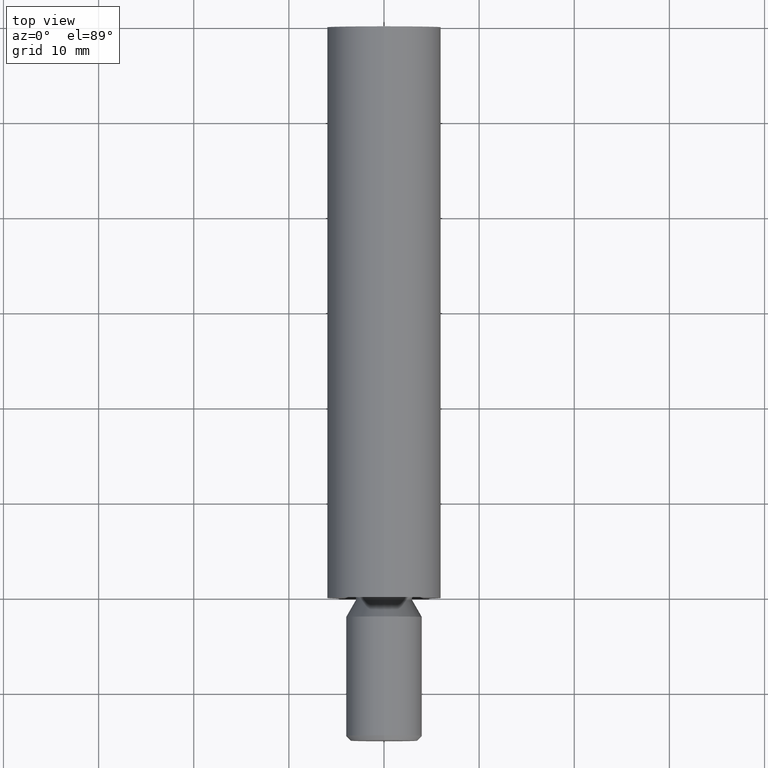
[diagram: clean part render]
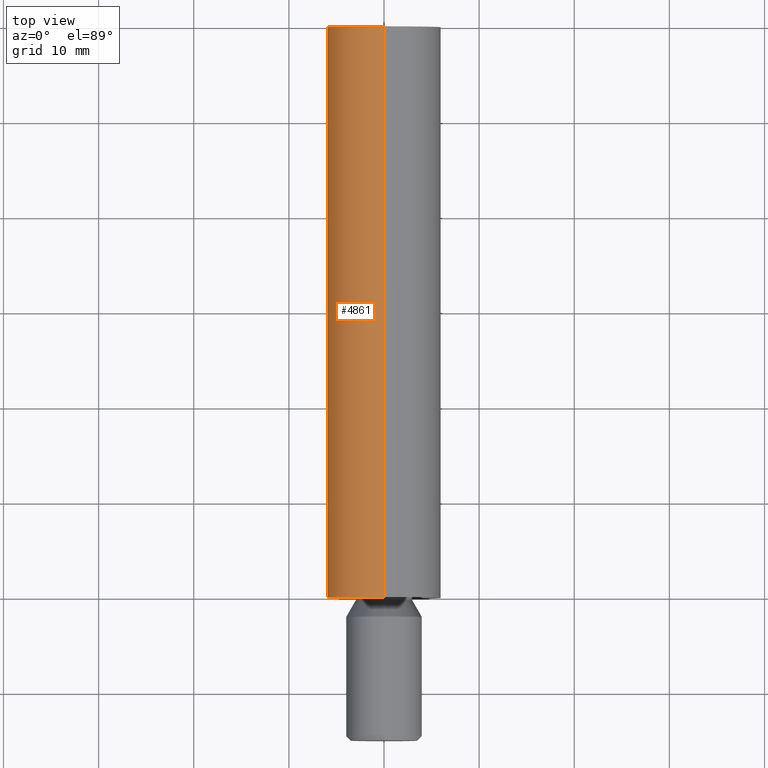
[diagram: same view with one face highlighted and labeled with its STEP entity id]
A machine part, top view. The second image highlights one B-rep face of the part: STEP entity #4861.
In plain terms, the highlighted cylindrical surface (partial cylindrical patch) has radius 6 mm, axis along (-0, -1, -0).
Its self-contained STEP definition (entity closure, byte-faithful):
#154 = DIRECTION ( 'NONE',  ( -0.0000000000000000000, -1.000000000000000000, -0.0000000000000000000 ) ) ;
#211 = VERTEX_POINT ( 'NONE', #8706 ) ;
#261 = AXIS2_PLACEMENT_3D ( 'NONE', #302, #7228, #1458 ) ;
#302 = CARTESIAN_POINT ( 'NONE',  ( 0.0000000000000000000, 0.0000000000000000000, 0.0000000000000000000 ) ) ;
#569 = EDGE_LOOP ( 'NONE', ( #14771, #8972, #6812, #4640 ) ) ;
#1141 = VECTOR ( 'NONE', #154, 1000.000000000000000 ) ;
#1458 = DIRECTION ( 'NONE',  ( 0.0000000000000000000, 0.0000000000000000000, -1.000000000000000000 ) ) ;
#1470 = VERTEX_POINT ( 'NONE', #8283 ) ;
#1877 = DIRECTION ( 'NONE',  ( 0.0000000000000000000, 0.0000000000000000000, -1.000000000000000000 ) ) ;
#2858 = CARTESIAN_POINT ( 'NONE',  ( 0.0000000000000000000, -2.710505431213761100E-017, -6.000000000000009800 ) ) ;
#3125 = DIRECTION ( 'NONE',  ( -0.0000000000000000000, -1.000000000000000000, -0.0000000000000000000 ) ) ;
#4036 = EDGE_CURVE ( 'NONE', #11092, #12972, #8484, .T. ) ;
#4640 = ORIENTED_EDGE ( 'NONE', *, *, #4036, .F. ) ;
#4861 = ADVANCED_FACE ( 'NONE', ( #12812 ), #9742, .T. ) ;
#4897 = EDGE_CURVE ( 'NONE', #1470, #12972, #11912, .T. ) ;
#5421 = LINE ( 'NONE', #11535, #1141 ) ;
#5798 = VECTOR ( 'NONE', #11246, 1000.000000000000000 ) ;
#6200 = AXIS2_PLACEMENT_3D ( 'NONE', #7241, #8393, #8494 ) ;
#6812 = ORIENTED_EDGE ( 'NONE', *, *, #4897, .T. ) ;
#7228 = DIRECTION ( 'NONE',  ( -0.0000000000000000000, -1.000000000000000000, -0.0000000000000000000 ) ) ;
#7241 = CARTESIAN_POINT ( 'NONE',  ( 0.0000000000000000000, 60.00000000000000000, 0.0000000000000000000 ) ) ;
#7678 = EDGE_CURVE ( 'NONE', #211, #1470, #11795, .T. ) ;
#8283 = CARTESIAN_POINT ( 'NONE',  ( 0.0000000000000000000, 60.00000000000000000, -5.999999999999998200 ) ) ;
#8393 = DIRECTION ( 'NONE',  ( -0.0000000000000000000, -1.000000000000000000, -0.0000000000000000000 ) ) ;
#8484 = CIRCLE ( 'NONE', #261, 6.000000000000012400 ) ;
#8494 = DIRECTION ( 'NONE',  ( 0.0000000000000000000, 0.0000000000000000000, -1.000000000000000000 ) ) ;
#8706 = CARTESIAN_POINT ( 'NONE',  ( 7.347880794884122700E-016, 60.00000000000000000, 5.999999999999998200 ) ) ;
#8972 = ORIENTED_EDGE ( 'NONE', *, *, #7678, .T. ) ;
#9742 = CYLINDRICAL_SURFACE ( 'NONE', #10425, 6.000000000000005300 ) ;
#9969 = CARTESIAN_POINT ( 'NONE',  ( 0.0000000000000000000, -15.00000000000000000, 0.0000000000000000000 ) ) ;
#10425 = AXIS2_PLACEMENT_3D ( 'NONE', #9969, #3125, #1877 ) ;
#11092 = VERTEX_POINT ( 'NONE', #14083 ) ;
#11246 = DIRECTION ( 'NONE',  ( -0.0000000000000000000, -1.000000000000000000, -0.0000000000000000000 ) ) ;
#11535 = CARTESIAN_POINT ( 'NONE',  ( 7.347880794884125700E-016, -15.00000000000000000, 6.000000000000005300 ) ) ;
#11795 = CIRCLE ( 'NONE', #6200, 5.999999999999998200 ) ;
#11912 = LINE ( 'NONE', #14660, #5798 ) ;
#12812 = FACE_OUTER_BOUND ( 'NONE', #569, .T. ) ;
#12972 = VERTEX_POINT ( 'NONE', #2858 ) ;
#14083 = CARTESIAN_POINT ( 'NONE',  ( 7.347880794884131600E-016, -2.710505431213761100E-017, 6.000000000000009800 ) ) ;
#14143 = EDGE_CURVE ( 'NONE', #211, #11092, #5421, .T. ) ;
#14660 = CARTESIAN_POINT ( 'NONE',  ( 0.0000000000000000000, -15.00000000000000000, -6.000000000000005300 ) ) ;
#14771 = ORIENTED_EDGE ( 'NONE', *, *, #14143, .F. ) ;